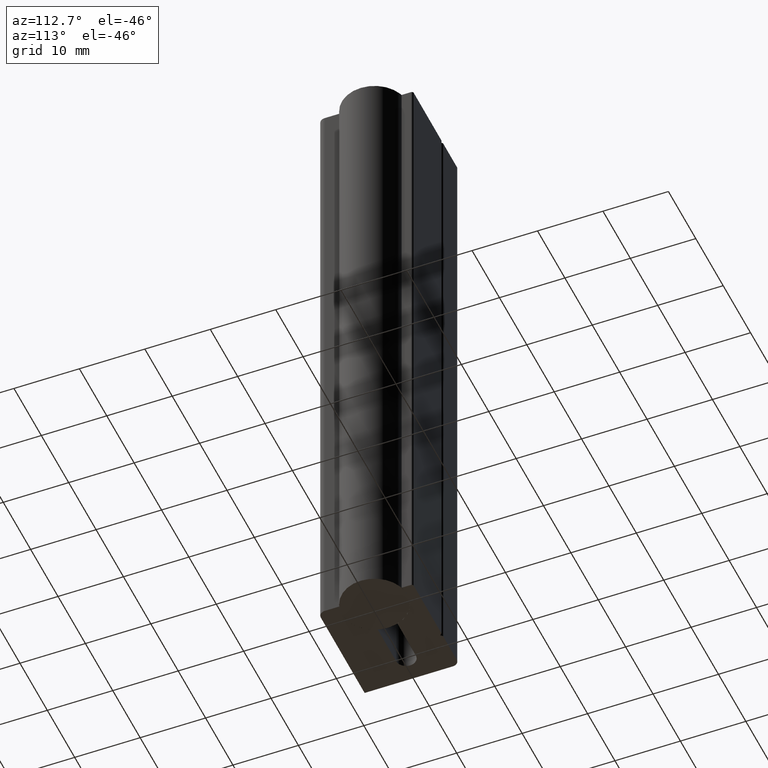
[diagram: clean part render]
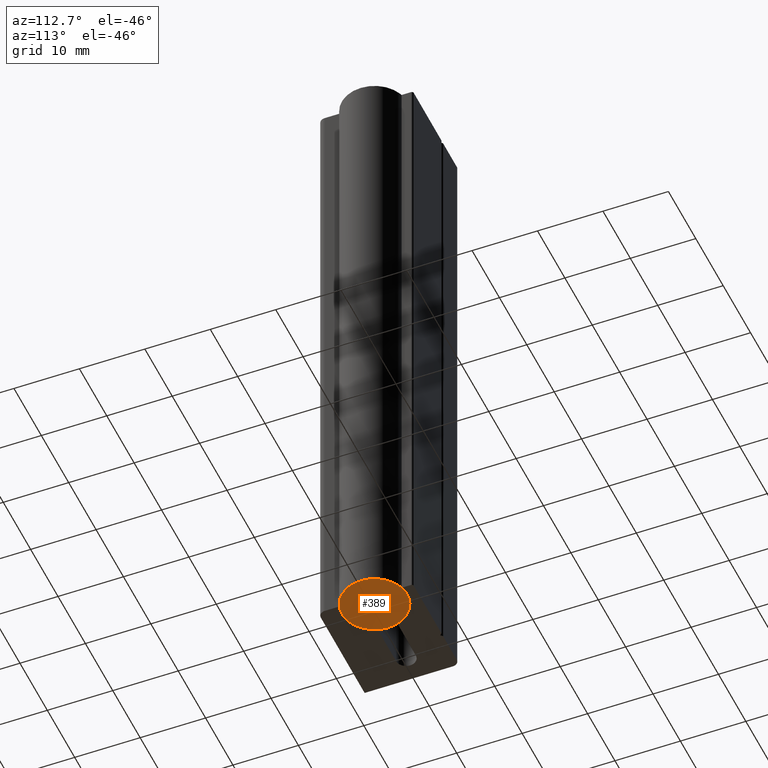
[diagram: same view with one face highlighted and labeled with its STEP entity id]
A machine part, auxiliary view. The second image highlights one B-rep face of the part: STEP entity #389.
In plain terms, the highlighted planar face has unit normal (0, 0, 1).
Its self-contained STEP definition (entity closure, byte-faithful):
#44=CIRCLE('',#471,5.);
#72=FACE_OUTER_BOUND('',#93,.T.);
#93=EDGE_LOOP('',(#354));
#201=VERTEX_POINT('',#700);
#252=EDGE_CURVE('',#201,#201,#44,.T.);
#354=ORIENTED_EDGE('',*,*,#252,.F.);
#368=PLANE('',#473);
#389=ADVANCED_FACE('',(#72),#368,.F.);
#471=AXIS2_PLACEMENT_3D('',#702,#584,#585);
#473=AXIS2_PLACEMENT_3D('',#704,#588,#589);
#584=DIRECTION('center_axis',(0.,0.,1.));
#585=DIRECTION('ref_axis',(1.,0.,0.));
#588=DIRECTION('center_axis',(0.,0.,1.));
#589=DIRECTION('ref_axis',(1.,0.,0.));
#700=CARTESIAN_POINT('',(-5.,-6.12323399573677E-16,0.));
#702=CARTESIAN_POINT('Origin',(0.,0.,0.));
#704=CARTESIAN_POINT('Origin',(0.,0.,0.));